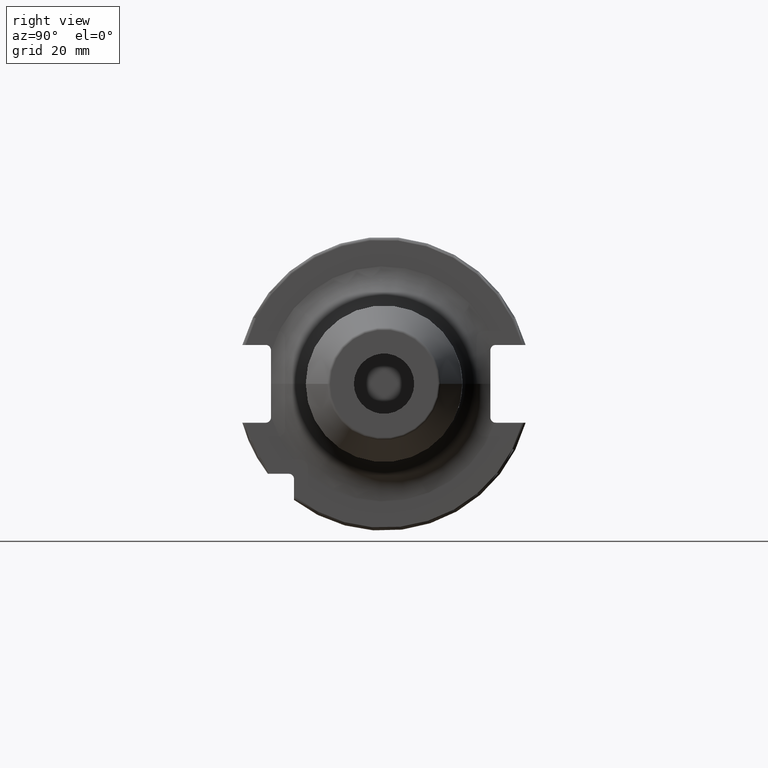
[diagram: clean part render]
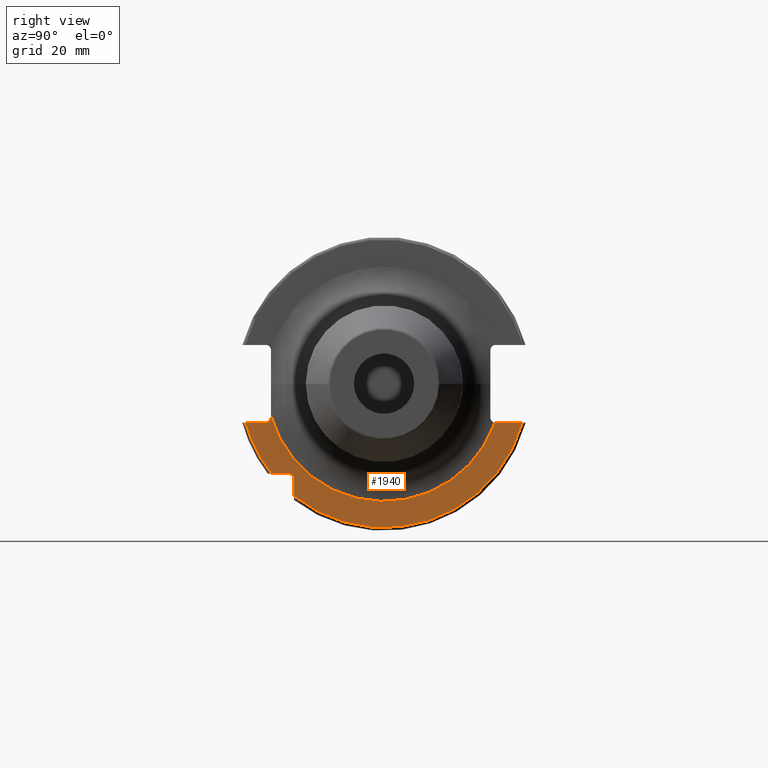
[diagram: same view with one face highlighted and labeled with its STEP entity id]
A machine part, right view. The second image highlights one B-rep face of the part: STEP entity #1940.
In plain terms, the highlighted planar face has unit normal (1, 0, 0).
Its self-contained STEP definition (entity closure, byte-faithful):
#126=CARTESIAN_POINT('',(1.905E1,3.705E1,-1.115E1));
#127=DIRECTION('',(-1.E0,0.E0,0.E0));
#128=DIRECTION('',(0.E0,0.E0,-1.E0));
#129=AXIS2_PLACEMENT_3D('',#126,#127,#128);
#136=CARTESIAN_POINT('',(1.905E1,0.E0,0.E0));
#137=DIRECTION('',(1.E0,0.E0,0.E0));
#138=DIRECTION('',(0.E0,-9.615381096710E-1,-2.746715559541E-1));
#139=AXIS2_PLACEMENT_3D('',#136,#137,#138);
#141=DIRECTION('',(0.E0,-1.E0,0.E0));
#142=VECTOR('',#141,8.911493733886E0);
#143=CARTESIAN_POINT('',(1.905E1,4.596149373389E1,-1.29E1));
#144=LINE('',#143,#142);
#145=DIRECTION('',(0.E0,0.E0,1.E0));
#146=VECTOR('',#145,5.653810627237E0);
#147=CARTESIAN_POINT('',(1.905E1,-2.985E1,-3.725381062724E1));
#148=LINE('',#147,#146);
#149=DIRECTION('',(0.E0,-1.E0,0.E0));
#150=VECTOR('',#149,5.653810627237E0);
#151=CARTESIAN_POINT('',(1.905E1,-3.16E1,-2.985E1));
#152=LINE('',#151,#150);
#153=DIRECTION('',(0.E0,1.E0,0.E0));
#154=VECTOR('',#153,6.711493733886E0);
#155=CARTESIAN_POINT('',(1.905E1,-4.596149373389E1,-1.29E1));
#156=LINE('',#155,#154);
#157=DIRECTION('',(0.E0,3.274579944236E-5,9.999999994639E-1));
#158=VECTOR('',#157,4.377898527251E-1);
#159=CARTESIAN_POINT('',(1.905E1,-3.75E1,-1.115E1));
#160=LINE('',#159,#158);
#358=CARTESIAN_POINT('',(1.905E1,-3.925E1,-1.115E1));
#359=DIRECTION('',(-1.E0,0.E0,0.E0));
#360=DIRECTION('',(0.E0,1.E0,0.E0));
#361=AXIS2_PLACEMENT_3D('',#358,#359,#360);
#381=CARTESIAN_POINT('',(1.905E1,4.596149373389E1,-1.29E1));
#393=CARTESIAN_POINT('',(1.905E1,0.E0,0.E0));
#394=DIRECTION('',(-1.E0,0.E0,0.E0));
#395=DIRECTION('',(0.E0,9.627964123359E-1,-2.702278083268E-1));
#396=AXIS2_PLACEMENT_3D('',#393,#394,#395);
#398=CARTESIAN_POINT('',(1.905E1,-4.596149373389E1,-1.29E1));
#409=CARTESIAN_POINT('',(1.905E1,0.E0,0.E0));
#410=DIRECTION('',(-1.E0,0.E0,0.E0));
#411=DIRECTION('',(0.E0,-7.803888060170E-1,-6.252945797329E-1));
#412=AXIS2_PLACEMENT_3D('',#409,#410,#411);
#423=CARTESIAN_POINT('',(1.905E1,-3.725381062724E1,-2.985E1));
#486=CARTESIAN_POINT('',(1.905E1,-3.16E1,-3.16E1));
#487=DIRECTION('',(-1.E0,0.E0,0.E0));
#488=DIRECTION('',(0.E0,0.E0,1.E0));
#489=AXIS2_PLACEMENT_3D('',#486,#487,#488);
#1594=VERTEX_POINT('',#381);
#1595=VERTEX_POINT('',#398);
#1614=CARTESIAN_POINT('',(1.905E1,-2.985E1,-3.725381062724E1));
#1615=VERTEX_POINT('',#1614);
#1622=CARTESIAN_POINT('',(1.905E1,-3.75E1,-1.115E1));
#1624=VERTEX_POINT('',#1622);
#1626=CARTESIAN_POINT('',(1.905E1,-3.925E1,-1.29E1));
#1628=VERTEX_POINT('',#1626);
#1642=CARTESIAN_POINT('',(1.905E1,3.705E1,-1.29E1));
#1644=VERTEX_POINT('',#1642);
#1650=CARTESIAN_POINT('',(1.905E1,-3.16E1,-2.985E1));
#1651=CARTESIAN_POINT('',(1.905E1,-2.985E1,-3.16E1));
#1652=VERTEX_POINT('',#1650);
#1653=VERTEX_POINT('',#1651);
#1674=CARTESIAN_POINT('',(1.905E1,-3.749998627717E1,-1.071219068221E1));
#1675=CARTESIAN_POINT('',(1.905E1,3.681051892899E1,-1.288354361885E1));
#1676=VERTEX_POINT('',#1674);
#1677=VERTEX_POINT('',#1675);
#1723=VERTEX_POINT('',#423);
#1912=CARTESIAN_POINT('',(1.905E1,0.E0,0.E0));
#1913=DIRECTION('',(1.E0,0.E0,0.E0));
#1914=DIRECTION('',(0.E0,-1.E0,0.E0));
#1915=AXIS2_PLACEMENT_3D('',#1912,#1913,#1914);
#1916=PLANE('',#1915);
#1918=ORIENTED_EDGE('',*,*,#1917,.T.);
#1919=ORIENTED_EDGE('',*,*,#1900,.F.);
#1921=ORIENTED_EDGE('',*,*,#1920,.F.);
#1923=ORIENTED_EDGE('',*,*,#1922,.T.);
#1925=ORIENTED_EDGE('',*,*,#1924,.T.);
#1927=ORIENTED_EDGE('',*,*,#1926,.F.);
#1929=ORIENTED_EDGE('',*,*,#1928,.T.);
#1931=ORIENTED_EDGE('',*,*,#1930,.T.);
#1933=ORIENTED_EDGE('',*,*,#1932,.T.);
#1935=ORIENTED_EDGE('',*,*,#1934,.F.);
#1937=ORIENTED_EDGE('',*,*,#1936,.T.);
#1938=EDGE_LOOP('',(#1918,#1919,#1921,#1923,#1925,#1927,#1929,#1931,#1933,#1935,
#1937));
#1939=FACE_OUTER_BOUND('',#1938,.F.);
#1940=ADVANCED_FACE('',(#1939),#1916,.T.);
#130=CIRCLE('',#129,1.75E0);
#140=CIRCLE('',#139,3.9E1);
#362=CIRCLE('',#361,1.75E0);
#397=CIRCLE('',#396,4.77375E1);
#413=CIRCLE('',#412,4.77375E1);
#490=CIRCLE('',#489,1.75E0);
#1900=EDGE_CURVE('',#1644,#1677,#130,.T.);
#1917=EDGE_CURVE('',#1676,#1677,#140,.T.);
#1920=EDGE_CURVE('',#1594,#1644,#144,.T.);
#1922=EDGE_CURVE('',#1594,#1615,#397,.T.);
#1924=EDGE_CURVE('',#1615,#1653,#148,.T.);
#1926=EDGE_CURVE('',#1652,#1653,#490,.T.);
#1928=EDGE_CURVE('',#1652,#1723,#152,.T.);
#1930=EDGE_CURVE('',#1723,#1595,#413,.T.);
#1932=EDGE_CURVE('',#1595,#1628,#156,.T.);
#1934=EDGE_CURVE('',#1624,#1628,#362,.T.);
#1936=EDGE_CURVE('',#1624,#1676,#160,.T.);